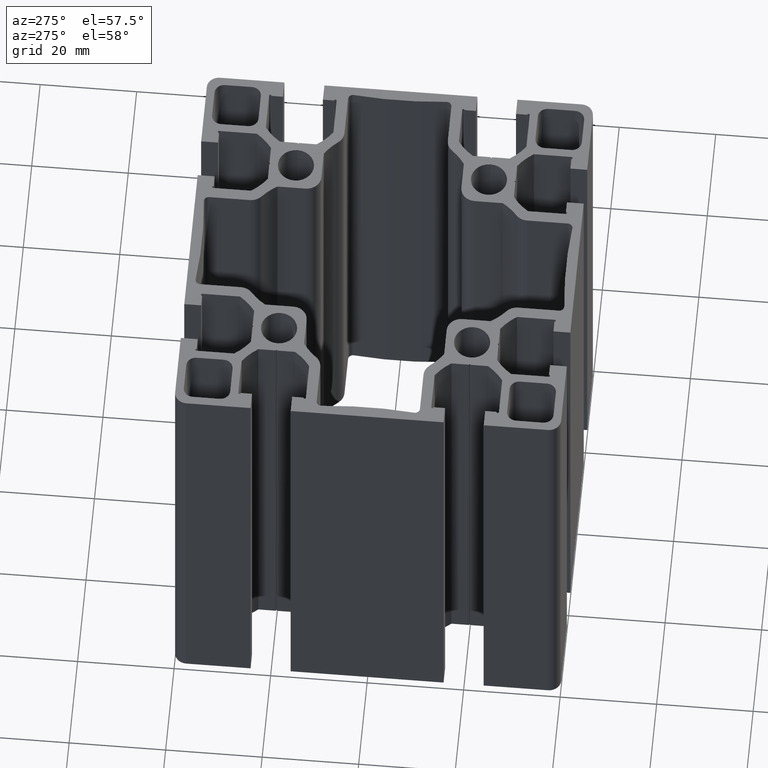
[diagram: clean part render]
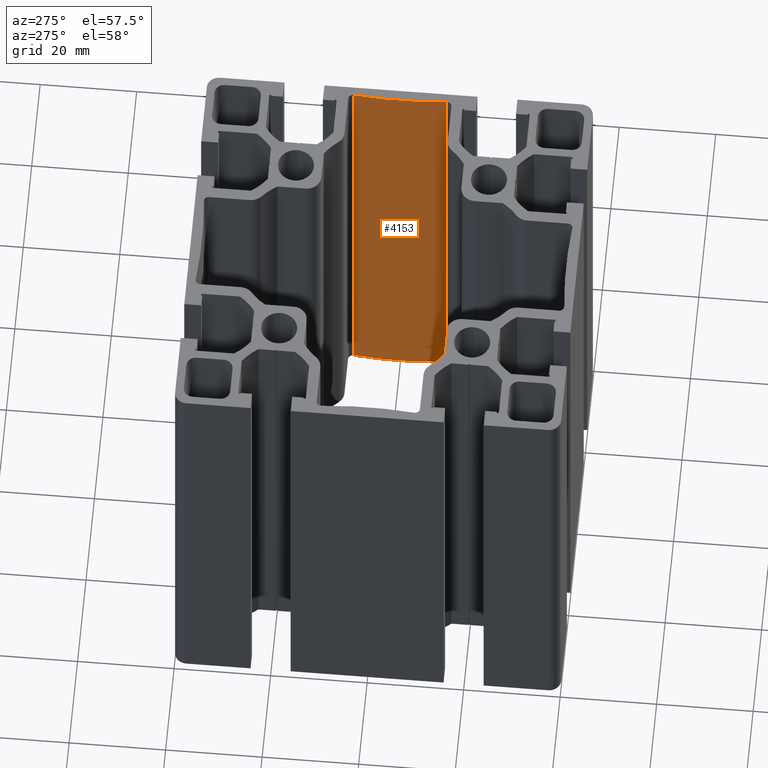
[diagram: same view with one face highlighted and labeled with its STEP entity id]
A machine part, auxiliary view. The second image highlights one B-rep face of the part: STEP entity #4153.
In plain terms, the highlighted cylindrical surface (partial cylindrical patch) has radius 95.9095 mm, axis along (0, 0, 1).
Its self-contained STEP definition (entity closure, byte-faithful):
#207=FACE_OUTER_BOUND('',#421,.T.);
#421=EDGE_LOOP('',(#2933,#2934,#2935,#2936));
#687=LINE('',#6219,#1143);
#688=LINE('',#6225,#1144);
#1143=VECTOR('',#4993,100.);
#1144=VECTOR('',#5000,100.);
#1583=CIRCLE('',#4428,95.909476202163);
#1584=CIRCLE('',#4429,95.909476202163);
#1789=VERTEX_POINT('',#6216);
#1790=VERTEX_POINT('',#6218);
#1791=VERTEX_POINT('',#6222);
#1792=VERTEX_POINT('',#6224);
#2256=EDGE_CURVE('',#1789,#1790,#687,.T.);
#2258=EDGE_CURVE('',#1791,#1789,#1583,.T.);
#2259=EDGE_CURVE('',#1791,#1792,#688,.T.);
#2260=EDGE_CURVE('',#1790,#1792,#1584,.T.);
#2933=ORIENTED_EDGE('',*,*,#2258,.F.);
#2934=ORIENTED_EDGE('',*,*,#2259,.T.);
#2935=ORIENTED_EDGE('',*,*,#2260,.F.);
#2936=ORIENTED_EDGE('',*,*,#2256,.F.);
#4050=CYLINDRICAL_SURFACE('',#4427,95.909476202163);
#4153=ADVANCED_FACE('',(#207),#4050,.T.);
#4427=AXIS2_PLACEMENT_3D('',#6221,#4996,#4997);
#4428=AXIS2_PLACEMENT_3D('',#6223,#4998,#4999);
#4429=AXIS2_PLACEMENT_3D('',#6226,#5001,#5002);
#4993=DIRECTION('',(0.,0.,1.));
#4996=DIRECTION('center_axis',(0.,0.,1.));
#4997=DIRECTION('ref_axis',(-0.994899194087198,0.100874147355228,0.));
#4998=DIRECTION('center_axis',(0.,0.,-1.));
#4999=DIRECTION('ref_axis',(-0.994899194087198,0.100874147355228,0.));
#5000=DIRECTION('',(0.,0.,1.));
#5001=DIRECTION('center_axis',(0.,0.,1.));
#5002=DIRECTION('ref_axis',(-0.994899194087198,0.100874147355228,0.));
#6216=CARTESIAN_POINT('',(38.1892123091715,9.7000000000001,0.));
#6218=CARTESIAN_POINT('',(38.1892123091715,9.7000000000001,100.));
#6219=CARTESIAN_POINT('',(38.1892123091715,9.7000000000001,0.));
#6221=CARTESIAN_POINT('Origin',(133.609472888029,0.0252133648203312,0.));
#6222=CARTESIAN_POINT('',(38.1842886858806,-9.60088892839053,0.));
#6223=CARTESIAN_POINT('Origin',(133.609472888029,0.0252133648203312,0.));
#6224=CARTESIAN_POINT('',(38.1842886858806,-9.60088892839053,100.));
#6225=CARTESIAN_POINT('',(38.1842886858806,-9.60088892839053,0.));
#6226=CARTESIAN_POINT('Origin',(133.609472888029,0.0252133648203312,100.));